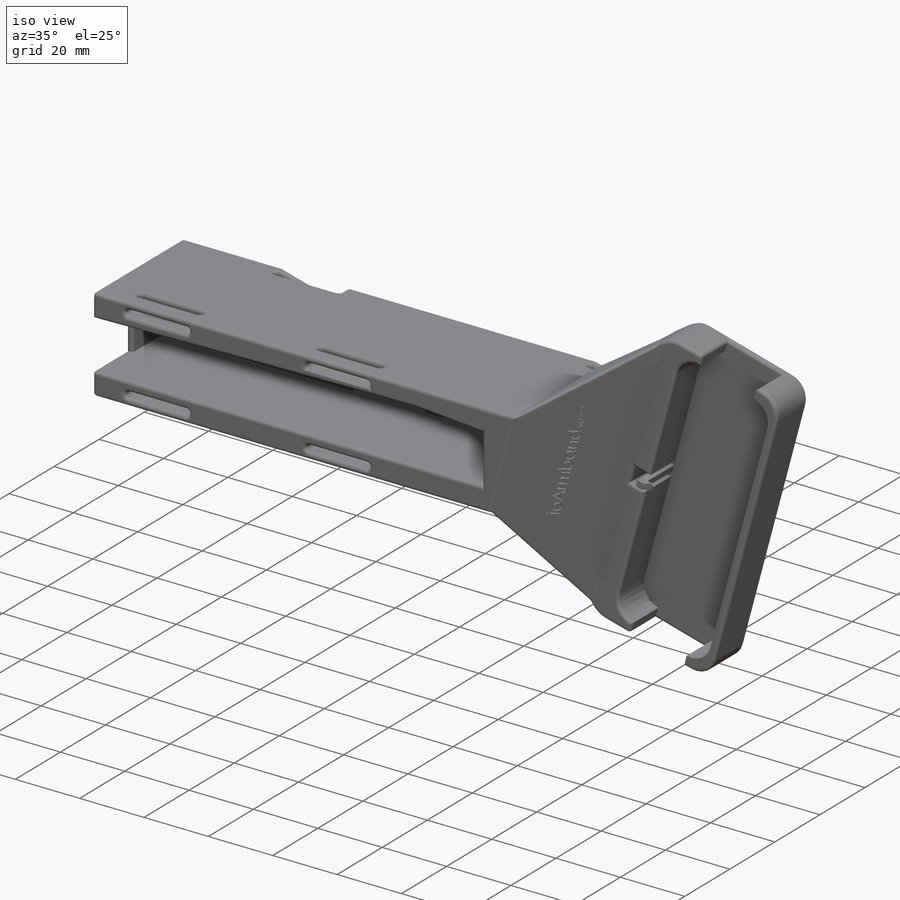
[diagram: iso view]
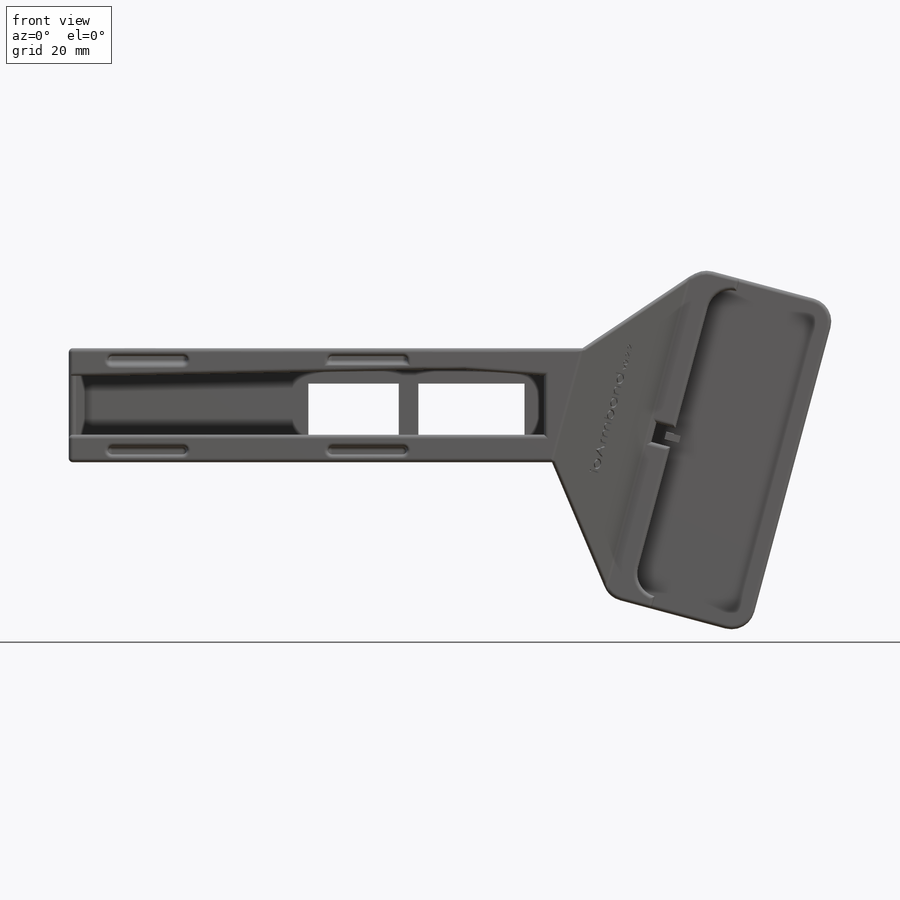
[diagram: front view]
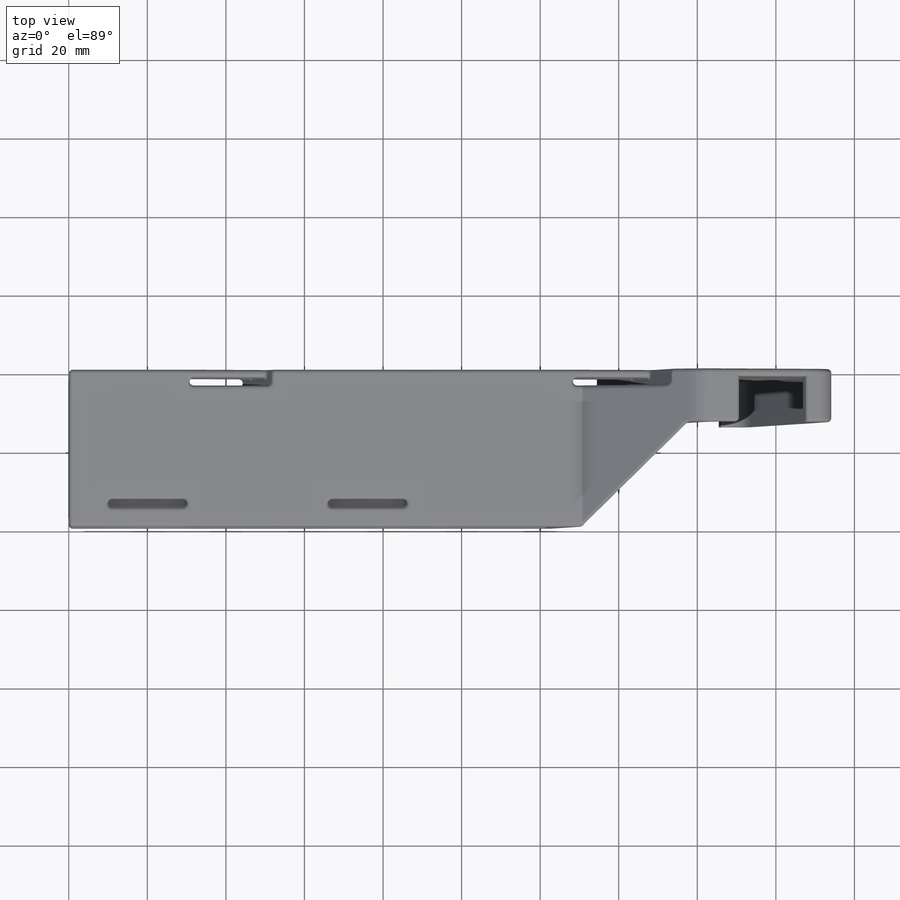
[diagram: top view]
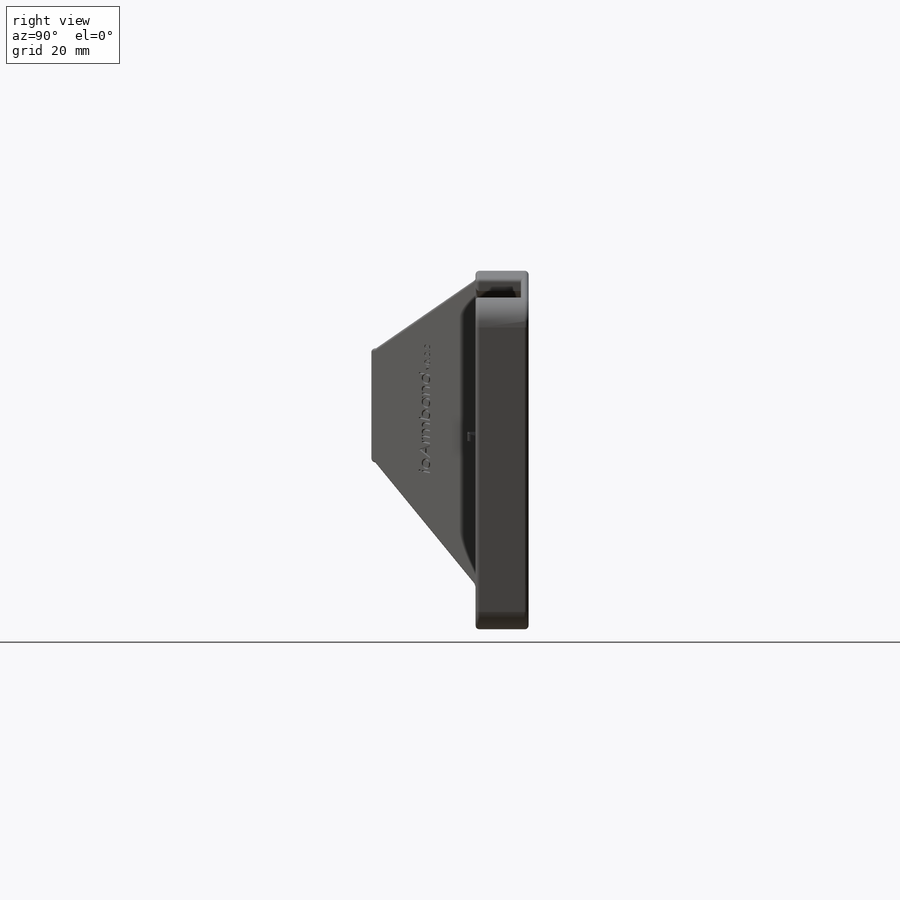
[diagram: right view]
SOLIDWORKS PART (.sldprt)
format: sldprt  version: not decoded by parser v0  size: 1,790,976 bytes
history: native  units: mm
features: sketch x20, cut_extrude x15, fillet x13, chamfer x6, extrude x4, plane x3, material x1 (+8 scaffold rows collapsed)
feature tree (70):
  scaffold x8  (default folders/planes/origin — collapsed)
  material  "Matériau <non spécifié>"
  plane  "Plan de face"
  plane  "Plan de dessus"
  plane  "Plan de droite"
  sketch  "Esquisse1"  dims[D1=123.0mm D2=29.0mm D3=123.0mm]
  extrude  "Boss.-Extru.1"  Depth=40mm
  sketch  "Esquisse2"  dims[D1=119.0mm D2=15.0mm D3=2.0mm D4=7.0mm]
  cut_extrude  "Enlèv. mat.-Extru.1"  Depth=28mm
  sketch  "Esquisse7"  dims[c1.D1=~42.064421mm c2.D1=105.0deg c2.D2=0.0mm c2.D3=90.0mm c2.D4=30.5mm c2.D5=75.0mm c2.D6=80.0mm c2.D7=85.5mm c3.D7=85.0deg c3.D6=85.5mm c4.D6=90.0deg c4.D7=~85.174647mm c5.D7=90.0deg c6.D7=~86.933324mm]
  extrude  "Boss.-Extru.3"  Depth=13.5mm
  sketch  "Esquisse8"  dims[c1.D1=~20.310126mm c2.D1=0.0deg c2.D2=~13.882591mm c3.D1=~60.015084mm c4.D1=0.0deg c4.D2=2.0mm c4.D3=29.5mm c4.D4=80.5mm c4.D5=3.215mm c4.D6=5.0mm c4.D7=5.0mm c4.D8=~3.638999mm c5.D8=90.0deg c5.D9=5.0mm c6.D8=5.0mm c6.D9=37.75mm c6.D10=5.0mm c6.D11=10.0mm c6.D12=2.0mm c6.D13=1.5mm c6.D14=2.0mm c6.D15=0.0mm c6.D16=2.0mm c6.D17=2.0mm c6.D18=1.5mm]
  cut_extrude  "Enlèv. mat.-Extru.3"  Depth=11.5mm
  fillet  "Congé2"  Radius=6mm
  fillet  "Congé1"  Radius=6mm
  sketch  "Esquisse9"  dims[c1.D1=37.0mm c1.D2=85.5mm c2.D2=0.0deg]
  extrude  "Boss.-Extru.4"  Depth=26.5mm
  chamfer  "Chanfrein5"  Distance=30.5mm
  chamfer  "Chanfrein6"  Distance=40mm
  chamfer  "Chanfrein7"  Distance=26.5mm
  sketch  "Esquisse11"  dims[c1.D1=~35.606418mm c2.D1=360.0deg c2.D2=15.0mm c2.D3=23.0mm c2.D4=~37.447158mm c3.D3=26.0mm c3.D4=29.5mm c3.D5=~41.380073mm]
  cut_extrude  "Enlèv. mat.-Extru.5"  Depth=1mm
  sketch  "Esquisse12"  dims[c1.D1=1.5mm c1.D2=20.0mm c1.D3=30.0mm c2.D1=1.5mm c2.D2=20.0mm c2.D3=30.0mm]
  cut_extrude  "Enlèv. mat.-Extru.7"  Depth=28mm
  chamfer  "Chanfrein8"  Distance=20mm
  chamfer  "Chanfrein9"  Distance=1.5mm
  sketch  "Esquisse13"  dims[c1.D1=32.0mm c1.D2=5.0mm c2.D1=32.0mm c2.D3=37.0mm c2.D4=60.0mm]
  cut_extrude  "Enlèv. mat.-Extru.8"  [1 undecoded]
  sketch  "Esquisse14"
  cut_extrude  "Enlèv. mat.-Extru.9"  [1 undecoded]
  sketch  "Esquisse15"  dims[D1=15.0mm D2=7.0mm D3=15.0mm]
  cut_extrude  "Enlèv. mat.-Extru.10"  Depth=28mm
  sketch  "Esquisse16"  dims[D1=20.0mm D2=20.0mm D3=20.0mm D4=20.0mm D5=2.0mm D6=2.0mm D7=2.0mm D8=2.0mm D9=2.0mm D10=2.0mm D11=2.0mm D12=2.0mm D13=10.0mm D14=10.0mm D15=35.0mm D16=35.0mm]
  cut_extrude  "Enlèv. mat.-Extru.11"  Depth=7mm
  sketch  "Esquisse17"  dims[D1=20.0mm D2=20.0mm D3=2.0mm D4=2.0mm D5=5.0mm D6=5.0mm D7=10.0mm D8=35.0mm]
  cut_extrude  "Enlèv. mat.-Extru.12"  Depth=4mm
  sketch  "Esquisse18"  dims[D1=20.0mm D2=20.0mm D3=10.0mm D4=2.0mm D5=2.0mm D6=35.0mm D7=5.0mm D8=5.0mm]
  cut_extrude  "Enlèv. mat.-Extru.13"  Depth=4mm
  sketch  "Esquisse19"  dims[D1=4.0mm D2=4.0mm]
  extrude  "Boss.-Extru.5"  Depth=2mm
  chamfer  "Chanfrein11"  Distance=2mm Angle=45deg
  sketch  "Esquisse22"  dims[D1=20.0mm D2=2.0mm D3=2.0mm D4=5.0mm]
  cut_extrude  "Enlèv. mat.-Extru.17"  [1 undecoded]
  sketch  "Esquisse24"  dims[c1.D1=0.0mm c1.D2=20.0mm c1.D3=~18.352159mm c2.D2=0.0mm c2.D3=0.0mm c2.D1=0.0mm c3.D3=0.0mm c3.D4=0.0mm c3.D5=0.0mm c4.D4=0.0mm c4.D6=4.0mm c4.D7=12.74mm c4.D3=90.0deg]
  cut_extrude  "Enlèv. mat.-Extru.18"  Depth=4mm
  sketch  "Esquisse25"  dims[c1.D1=20.0mm c1.D2=~4.50786mm c2.D2=90.0deg c3.D2=2.0mm c3.D3=2.0mm c3.D4=30.0mm]
  cut_extrude  "Enlèv. mat.-Extru.19"  [1 undecoded]
  sketch  "Esquisse27"  dims[D1=20.0mm D2=0.0mm D3=4.0mm D4=10.33mm]
  cut_extrude  "Enlèv. mat.-Extru.20"  Depth=4mm
  sketch  "Esquisse28"
  cut_extrude  "Enlèv. mat.-Extru.21"  [1 undecoded]
  fillet  "Congé5"  Radius=6mm
  fillet  "Congé7"  Radius=1mm
  fillet  "Congé8"  Radius=1mm
  fillet  "Congé9"  Radius=1mm
  fillet  "Congé10"  Radius=1mm
  fillet  "Congé12"  Radius=0.5mm
  fillet  "Congé13"  Radius=1mm
  fillet  "Congé14"  Radius=1mm
  fillet  "Congé15"  Radius=0.6mm
  fillet  "Congé16"  Radius=1mm
  fillet  "Congé17"  Radius=0.1mm
  sketch  "Esquisse29"  dims[D1=0.0mm]
decode coverage: 51 of 58 modeling features carry decoded parameters
note: ~ marks probable driven/reference dimensions
note: 5 parameter values undecoded
summary: no parameter record found for 5 features
note: suppression state not decoded; provenance and decode notes live in map.json
